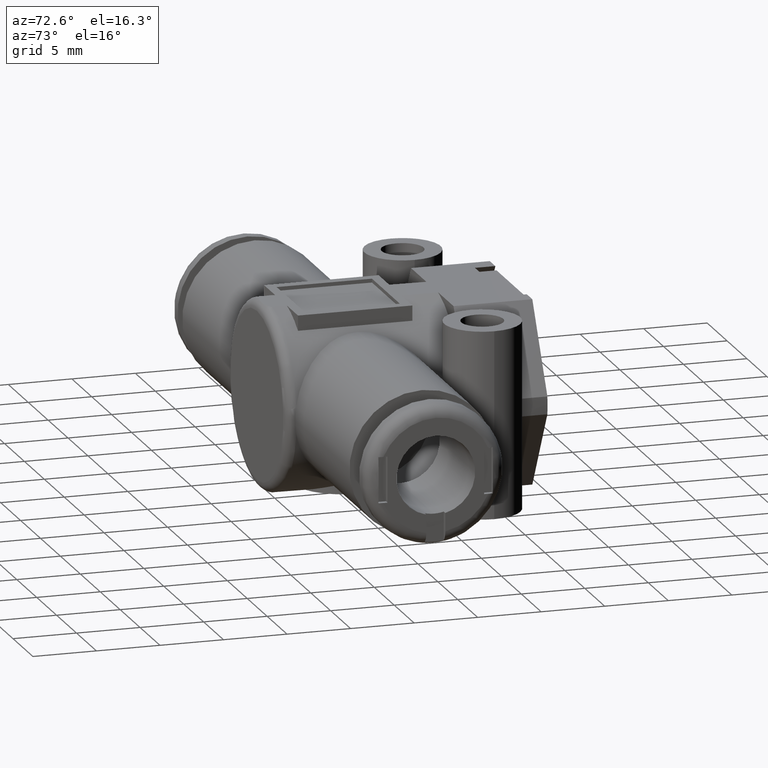
[diagram: clean part render]
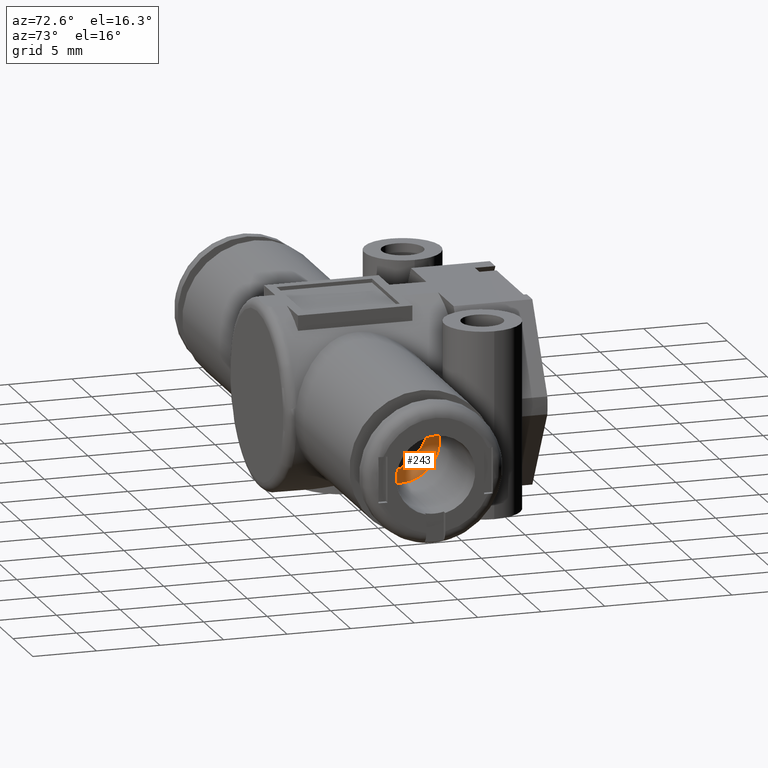
[diagram: same view with one face highlighted and labeled with its STEP entity id]
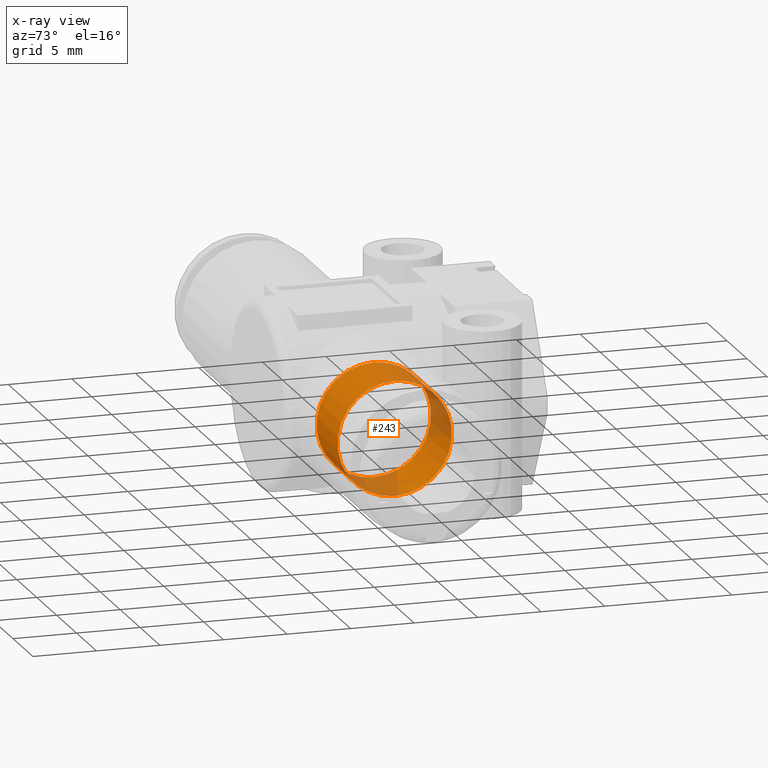
[diagram: x-ray of the same camera — body ghosted, the highlighted face saturated]
A machine part, auxiliary view. The second image highlights one B-rep face of the part: STEP entity #243.
The next image is the same camera in x-ray: the body ghosted, the highlighted face saturated — about 25% of this face is hidden behind the body in this view.
In plain terms, the highlighted cylindrical surface (bore or boss wall) has radius 4.5 mm, axis along (-1, 0, 0).
Its self-contained STEP definition (entity closure, byte-faithful):
#243 = ADVANCED_FACE( '', ( #541, #542 ), #543, .F. );
#541 = FACE_OUTER_BOUND( '', #967, .T. );
#542 = FACE_OUTER_BOUND( '', #968, .T. );
#543 = CYLINDRICAL_SURFACE( '', #969, 4.50000000000000 );
#967 = EDGE_LOOP( '', ( #1462 ) );
#968 = EDGE_LOOP( '', ( #1463 ) );
#969 = AXIS2_PLACEMENT_3D( '', #1464, #1465, #1466 );
#1462 = ORIENTED_EDGE( '', *, *, #2370, .T. );
#1463 = ORIENTED_EDGE( '', *, *, #2371, .F. );
#1464 = CARTESIAN_POINT( '', ( 21.0000000000000, 0.000000000000000, 0.000000000000000 ) );
#1465 = DIRECTION( '', ( -1.00000000000000, -0.000000000000000, 0.000000000000000 ) );
#1466 = DIRECTION( '', ( -0.000000000000000, 0.000000000000000, -1.00000000000000 ) );
#2370 = EDGE_CURVE( '', #2795, #2795, #2796, .T. );
#2371 = EDGE_CURVE( '', #2797, #2797, #2798, .T. );
#2795 = VERTEX_POINT( '', #3458 );
#2796 = CIRCLE( '', #3459, 4.50000000000000 );
#2797 = VERTEX_POINT( '', #3460 );
#2798 = CIRCLE( '', #3461, 4.50000000000000 );
#3458 = CARTESIAN_POINT( '', ( 14.2000000000000, 0.000000000000000, -4.50000000000000 ) );
#3459 = AXIS2_PLACEMENT_3D( '', #4521, #4522, #4523 );
#3460 = CARTESIAN_POINT( '', ( 8.90000000000000, 0.000000000000000, -4.50000000000000 ) );
#3461 = AXIS2_PLACEMENT_3D( '', #4524, #4525, #4526 );
#4521 = CARTESIAN_POINT( '', ( 14.2000000000000, 0.000000000000000, 0.000000000000000 ) );
#4522 = DIRECTION( '', ( 1.00000000000000, 0.000000000000000, -0.000000000000000 ) );
#4523 = DIRECTION( '', ( -0.000000000000000, 0.000000000000000, -1.00000000000000 ) );
#4524 = CARTESIAN_POINT( '', ( 8.90000000000000, 0.000000000000000, 0.000000000000000 ) );
#4525 = DIRECTION( '', ( 1.00000000000000, 0.000000000000000, -0.000000000000000 ) );
#4526 = DIRECTION( '', ( -0.000000000000000, 0.000000000000000, -1.00000000000000 ) );